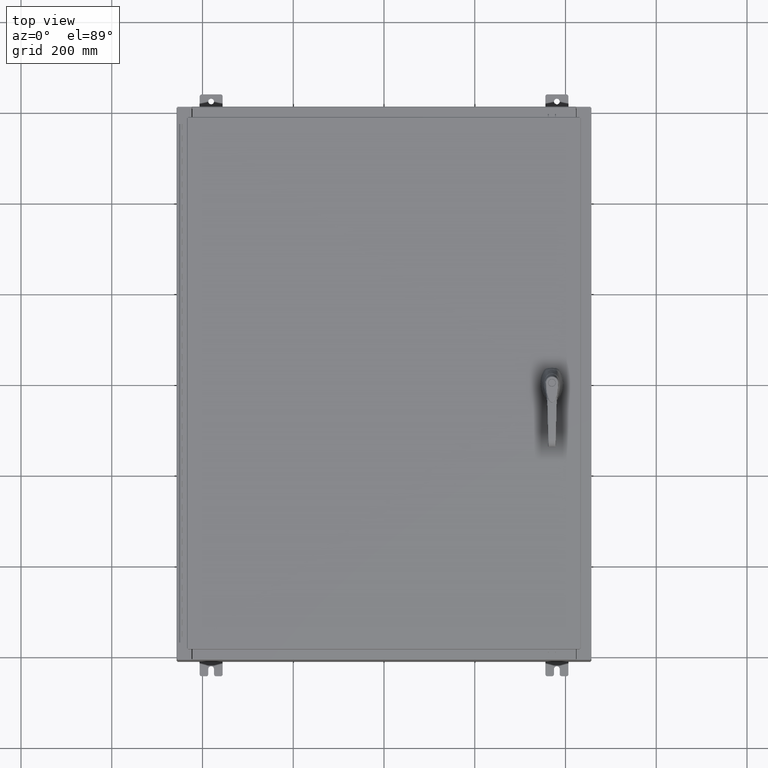
[diagram: clean part render]
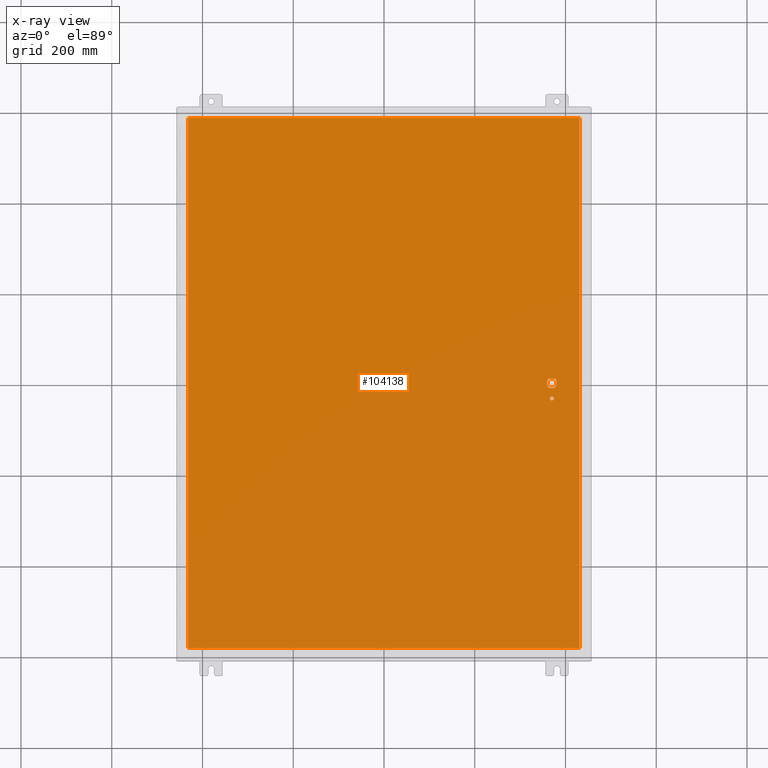
[diagram: x-ray — body ghosted, one internal face saturated and labeled with its STEP entity id]
A machine part, top view, then the same camera in x-ray: the body is ghosted and one INTERNAL B-rep face — a face not visible from any outside direction — is saturated and labeled: STEP entity #104138.
In plain terms, the highlighted planar face has unit normal (0, 0, -1).
Its self-contained STEP definition (entity closure, byte-faithful):
#894 = VECTOR ( 'NONE', #19368, 39.37007874015748100 ) ;
#2168 = VERTEX_POINT ( 'NONE', #36097 ) ;
#2755 = CARTESIAN_POINT ( 'NONE',  ( 14.37777262924369000, 0.4029999999999252000, -0.07470000000000003000 ) ) ;
#5060 = CARTESIAN_POINT ( 'NONE',  ( 14.57799999999999900, 0.0000000000000000000, -0.07470000000000003000 ) ) ;
#5458 = DIRECTION ( 'NONE',  ( -0.0000000000000000000, -0.0000000000000000000, 1.000000000000000000 ) ) ;
#7391 = AXIS2_PLACEMENT_3D ( 'NONE', #18136, #89898, #28477 ) ;
#8843 = VERTEX_POINT ( 'NONE', #2755 ) ;
#10683 = DIRECTION ( 'NONE',  ( -0.0000000000000000000, -0.0000000000000000000, 1.000000000000000000 ) ) ;
#11011 = CARTESIAN_POINT ( 'NONE',  ( 16.99029999999999800, 23.00630000000001000, -0.07469999999999804600 ) ) ;
#11933 = VECTOR ( 'NONE', #21535, 39.37007874015748100 ) ;
#12675 = LINE ( 'NONE', #11011, #64060 ) ;
#13922 = VERTEX_POINT ( 'NONE', #94110 ) ;
#14947 = CARTESIAN_POINT ( 'NONE',  ( 14.98099999999992700, 0.2002273707563075900, -0.07470000000000003000 ) ) ;
#15388 = DIRECTION ( 'NONE',  ( -1.000000000000000000, -1.776356839400246700E-015, 0.0000000000000000000 ) ) ;
#15870 = EDGE_CURVE ( 'NONE', #117684, #2168, #124058, .T. ) ;
#17016 = VECTOR ( 'NONE', #53013, 39.37007874015748100 ) ;
#17322 = VERTEX_POINT ( 'NONE', #100551 ) ;
#18124 = CIRCLE ( 'NONE', #7391, 0.1715000000000011500 ) ;
#18136 = CARTESIAN_POINT ( 'NONE',  ( 14.57799999999999900, -1.338000000000000100, -0.07470000000000003000 ) ) ;
#19368 = DIRECTION ( 'NONE',  ( 1.000000000000000000, 0.0000000000000000000, 0.0000000000000000000 ) ) ;
#21194 = VERTEX_POINT ( 'NONE', #127807 ) ;
#21363 = DIRECTION ( 'NONE',  ( -1.000000000000000000, -0.0000000000000000000, -0.0000000000000000000 ) ) ;
#21507 = AXIS2_PLACEMENT_3D ( 'NONE', #66952, #5458, #77198 ) ;
#21535 = DIRECTION ( 'NONE',  ( 1.000000000000000000, -0.0000000000000000000, -0.0000000000000000000 ) ) ;
#22285 = VECTOR ( 'NONE', #29105, 39.37007874015748100 ) ;
#24940 = DIRECTION ( 'NONE',  ( -0.0000000000000000000, -0.0000000000000000000, 1.000000000000000000 ) ) ;
#25966 = CARTESIAN_POINT ( 'NONE',  ( 0.0000000000000000000, 0.0000000000000000000, -0.07470000000000000300 ) ) ;
#26738 = VECTOR ( 'NONE', #46717, 39.37007874015748100 ) ;
#28477 = DIRECTION ( 'NONE',  ( -1.000000000000000000, 0.0000000000000000000, 0.0000000000000000000 ) ) ;
#28769 = EDGE_CURVE ( 'NONE', #92320, #124506, #12675, .T. ) ;
#29105 = DIRECTION ( 'NONE',  ( 5.457491617345625800E-015, -1.000000000000000000, 0.0000000000000000000 ) ) ;
#31555 = VECTOR ( 'NONE', #124313, 39.37007874015748100 ) ;
#32045 = CARTESIAN_POINT ( 'NONE',  ( 0.0000000000000000000, 0.4029999999999252000, -0.07470000000000003000 ) ) ;
#32685 = CIRCLE ( 'NONE', #21507, 0.4499999999999168000 ) ;
#34511 = EDGE_CURVE ( 'NONE', #117684, #64507, #80063, .T. ) ;
#34621 = ORIENTED_EDGE ( 'NONE', *, *, #97881, .T. ) ;
#36097 = CARTESIAN_POINT ( 'NONE',  ( 14.77822737075630900, 0.4029999999999250300, -0.07470000000000003000 ) ) ;
#36326 = DIRECTION ( 'NONE',  ( -1.000000000000000000, 0.0000000000000000000, -0.0000000000000000000 ) ) ;
#37901 = EDGE_CURVE ( 'NONE', #17322, #94358, #130827, .T. ) ;
#38520 = CIRCLE ( 'NONE', #54408, 0.1715000000000011500 ) ;
#39299 = LINE ( 'NONE', #72676, #11933 ) ;
#39430 = AXIS2_PLACEMENT_3D ( 'NONE', #72183, #10683, #82466 ) ;
#39729 = ORIENTED_EDGE ( 'NONE', *, *, #112960, .T. ) ;
#40494 = CARTESIAN_POINT ( 'NONE',  ( 16.99029999999999800, -23.00630000000000000, -0.07470000000000000300 ) ) ;
#41075 = CARTESIAN_POINT ( 'NONE',  ( 14.37777262924369000, -0.4029999999999250300, -0.07470000000000003000 ) ) ;
#42047 = ORIENTED_EDGE ( 'NONE', *, *, #60663, .T. ) ;
#42512 = EDGE_CURVE ( 'NONE', #57767, #92320, #53407, .T. ) ;
#42896 = EDGE_LOOP ( 'NONE', ( #90769, #109147, #60754, #66712 ) ) ;
#46717 = DIRECTION ( 'NONE',  ( 0.0000000000000000000, -1.000000000000000000, 0.0000000000000000000 ) ) ;
#47303 = CARTESIAN_POINT ( 'NONE',  ( 14.74950000000000100, -1.338000000000000100, -0.07470000000000003000 ) ) ;
#47505 = CARTESIAN_POINT ( 'NONE',  ( 14.57799999999999900, 0.0000000000000000000, -0.07470000000000003000 ) ) ;
#52118 = CARTESIAN_POINT ( 'NONE',  ( 14.17500000000007400, 0.0000000000000000000, -0.07470000000000003000 ) ) ;
#53013 = DIRECTION ( 'NONE',  ( 0.0000000000000000000, -1.000000000000000000, 0.0000000000000000000 ) ) ;
#53407 = LINE ( 'NONE', #127368, #131863 ) ;
#54408 = AXIS2_PLACEMENT_3D ( 'NONE', #86382, #24940, #96616 ) ;
#56060 = PLANE ( 'NONE',  #102178 ) ;
#56283 = EDGE_CURVE ( 'NONE', #120806, #64507, #93104, .T. ) ;
#57767 = VERTEX_POINT ( 'NONE', #40494 ) ;
#57834 = DIRECTION ( 'NONE',  ( -1.000000000000000000, -1.776356839400246700E-015, 0.0000000000000000000 ) ) ;
#60663 = EDGE_CURVE ( 'NONE', #13922, #17322, #98808, .T. ) ;
#60754 = ORIENTED_EDGE ( 'NONE', *, *, #100410, .F. ) ;
#64060 = VECTOR ( 'NONE', #21363, 39.37007874015748100 ) ;
#64065 = ORIENTED_EDGE ( 'NONE', *, *, #34511, .F. ) ;
#64507 = VERTEX_POINT ( 'NONE', #82578 ) ;
#65235 = ORIENTED_EDGE ( 'NONE', *, *, #56283, .T. ) ;
#66056 = DIRECTION ( 'NONE',  ( 0.0000000000000000000, 1.000000000000000000, 0.0000000000000000000 ) ) ;
#66712 = ORIENTED_EDGE ( 'NONE', *, *, #28769, .F. ) ;
#66952 = CARTESIAN_POINT ( 'NONE',  ( 14.57799999999999900, 0.0000000000000000000, -0.07470000000000003000 ) ) ;
#68673 = ORIENTED_EDGE ( 'NONE', *, *, #93505, .T. ) ;
#71956 = ORIENTED_EDGE ( 'NONE', *, *, #37901, .T. ) ;
#72183 = CARTESIAN_POINT ( 'NONE',  ( 14.57799999999999900, 0.0000000000000000000, -0.07470000000000003000 ) ) ;
#72676 = CARTESIAN_POINT ( 'NONE',  ( -16.99029999999999800, -23.00630000000000300, -0.07469999999999804600 ) ) ;
#76793 = DIRECTION ( 'NONE',  ( -0.0000000000000000000, -0.0000000000000000000, 1.000000000000000000 ) ) ;
#77198 = DIRECTION ( 'NONE',  ( -1.000000000000000000, -5.329070518200740300E-015, 0.0000000000000000000 ) ) ;
#80063 = LINE ( 'NONE', #80166, #22285 ) ;
#80166 = CARTESIAN_POINT ( 'NONE',  ( 14.98099999999992700, 8.175868191945441800E-014, -0.07470000000000003000 ) ) ;
#80772 = CARTESIAN_POINT ( 'NONE',  ( 0.0000000000000000000, -0.4029999999999252000, -0.07470000000000003000 ) ) ;
#81704 = EDGE_LOOP ( 'NONE', ( #68673, #117567 ) ) ;
#82466 = DIRECTION ( 'NONE',  ( -1.000000000000000000, -5.329070518200740300E-015, 0.0000000000000000000 ) ) ;
#82578 = CARTESIAN_POINT ( 'NONE',  ( 14.98099999999992700, -0.2002273707563067300, -0.07470000000000003000 ) ) ;
#82727 = LINE ( 'NONE', #80772, #894 ) ;
#84815 = EDGE_CURVE ( 'NONE', #92163, #106934, #18124, .T. ) ;
#86106 = LINE ( 'NONE', #32045, #31555 ) ;
#86382 = CARTESIAN_POINT ( 'NONE',  ( 14.57799999999999900, -1.338000000000000100, -0.07470000000000003000 ) ) ;
#89898 = DIRECTION ( 'NONE',  ( -0.0000000000000000000, -0.0000000000000000000, 1.000000000000000000 ) ) ;
#90769 = ORIENTED_EDGE ( 'NONE', *, *, #42512, .F. ) ;
#92163 = VERTEX_POINT ( 'NONE', #105427 ) ;
#92320 = VERTEX_POINT ( 'NONE', #127802 ) ;
#92437 = CARTESIAN_POINT ( 'NONE',  ( -16.99029999999999400, 23.00630000000000300, -0.07470000000000000300 ) ) ;
#93104 = CIRCLE ( 'NONE', #120670, 0.4499999999999168000 ) ;
#93505 = EDGE_CURVE ( 'NONE', #106934, #92163, #38520, .T. ) ;
#94110 = CARTESIAN_POINT ( 'NONE',  ( 14.17500000000007400, 0.2002273707563075900, -0.07470000000000003000 ) ) ;
#94358 = VERTEX_POINT ( 'NONE', #41075 ) ;
#95900 = EDGE_LOOP ( 'NONE', ( #65235, #64065, #122083, #34621, #117531, #42047, #71956, #39729 ) ) ;
#96616 = DIRECTION ( 'NONE',  ( -1.000000000000000000, 0.0000000000000000000, 0.0000000000000000000 ) ) ;
#97650 = DIRECTION ( 'NONE',  ( 0.0000000000000000000, 0.0000000000000000000, -1.000000000000000000 ) ) ;
#97881 = EDGE_CURVE ( 'NONE', #2168, #8843, #86106, .T. ) ;
#98808 = LINE ( 'NONE', #52118, #17016 ) ;
#100410 = EDGE_CURVE ( 'NONE', #124506, #21194, #105287, .T. ) ;
#100551 = CARTESIAN_POINT ( 'NONE',  ( 14.17500000000007400, -0.2002273707563079800, -0.07470000000000003000 ) ) ;
#102178 = AXIS2_PLACEMENT_3D ( 'NONE', #25966, #97650, #36326 ) ;
#103863 = EDGE_CURVE ( 'NONE', #21194, #57767, #39299, .T. ) ;
#104138 = ADVANCED_FACE ( 'NONE', ( #132154, #111358, #108164 ), #56060, .T. ) ;
#104759 = EDGE_CURVE ( 'NONE', #8843, #13922, #32685, .T. ) ;
#105287 = LINE ( 'NONE', #108038, #26738 ) ;
#105427 = CARTESIAN_POINT ( 'NONE',  ( 14.40649999999999800, -1.338000000000000100, -0.07470000000000003000 ) ) ;
#106934 = VERTEX_POINT ( 'NONE', #47303 ) ;
#108038 = CARTESIAN_POINT ( 'NONE',  ( -16.99029999999999400, 23.00630000000001000, -0.07470000000000129300 ) ) ;
#108164 = FACE_BOUND ( 'NONE', #95900, .T. ) ;
#109147 = ORIENTED_EDGE ( 'NONE', *, *, #103863, .F. ) ;
#111358 = FACE_OUTER_BOUND ( 'NONE', #42896, .T. ) ;
#112960 = EDGE_CURVE ( 'NONE', #94358, #120806, #82727, .T. ) ;
#116912 = AXIS2_PLACEMENT_3D ( 'NONE', #47505, #119125, #57834 ) ;
#117531 = ORIENTED_EDGE ( 'NONE', *, *, #104759, .T. ) ;
#117567 = ORIENTED_EDGE ( 'NONE', *, *, #84815, .T. ) ;
#117684 = VERTEX_POINT ( 'NONE', #14947 ) ;
#119125 = DIRECTION ( 'NONE',  ( -0.0000000000000000000, -0.0000000000000000000, 1.000000000000000000 ) ) ;
#120670 = AXIS2_PLACEMENT_3D ( 'NONE', #5060, #76793, #15388 ) ;
#120806 = VERTEX_POINT ( 'NONE', #131244 ) ;
#122083 = ORIENTED_EDGE ( 'NONE', *, *, #15870, .T. ) ;
#124058 = CIRCLE ( 'NONE', #39430, 0.4499999999999168000 ) ;
#124313 = DIRECTION ( 'NONE',  ( -1.000000000000000000, 0.0000000000000000000, 0.0000000000000000000 ) ) ;
#124506 = VERTEX_POINT ( 'NONE', #92437 ) ;
#127368 = CARTESIAN_POINT ( 'NONE',  ( 16.99029999999999800, -23.00630000000000300, -0.07470000000000019700 ) ) ;
#127802 = CARTESIAN_POINT ( 'NONE',  ( 16.99029999999999800, 23.00630000000000300, -0.07470000000000000300 ) ) ;
#127807 = CARTESIAN_POINT ( 'NONE',  ( -16.99029999999999800, -23.00630000000000000, -0.07470000000000000300 ) ) ;
#130827 = CIRCLE ( 'NONE', #116912, 0.4499999999999168000 ) ;
#131244 = CARTESIAN_POINT ( 'NONE',  ( 14.77822737075630900, -0.4029999999999252000, -0.07470000000000003000 ) ) ;
#131863 = VECTOR ( 'NONE', #66056, 39.37007874015748100 ) ;
#132154 = FACE_BOUND ( 'NONE', #81704, .T. ) ;